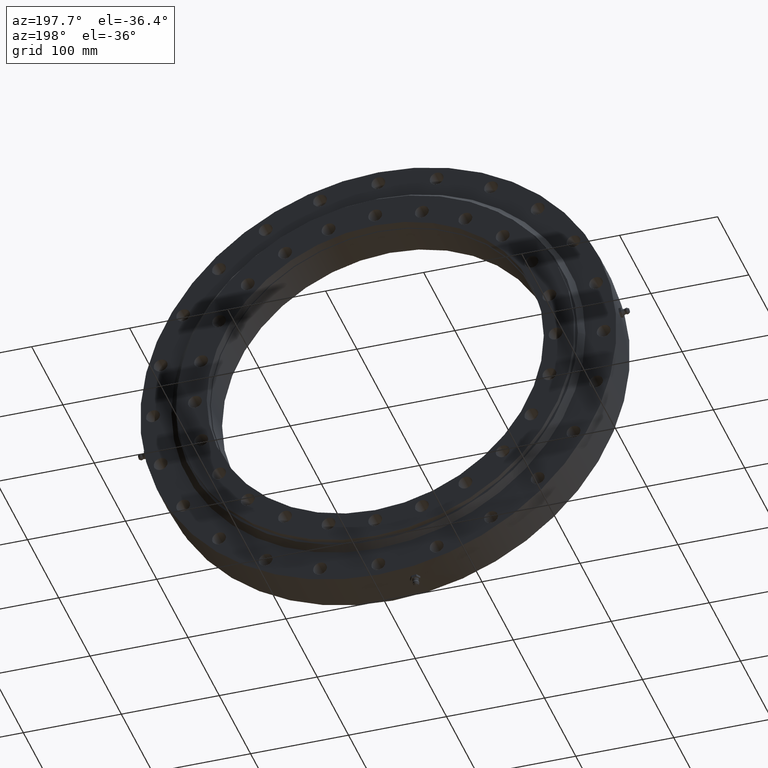
[diagram: clean part render]
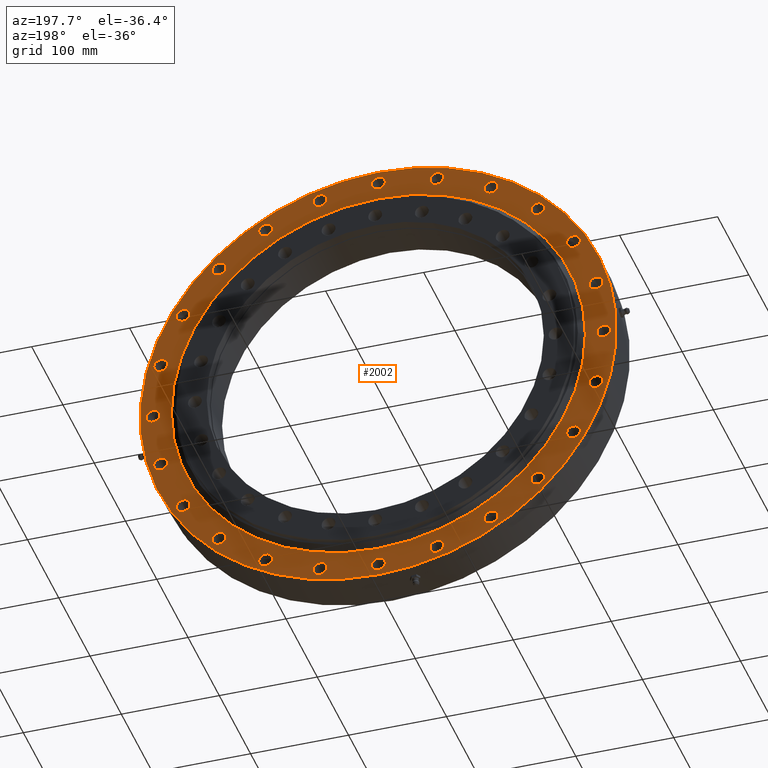
[diagram: same view with one face highlighted and labeled with its STEP entity id]
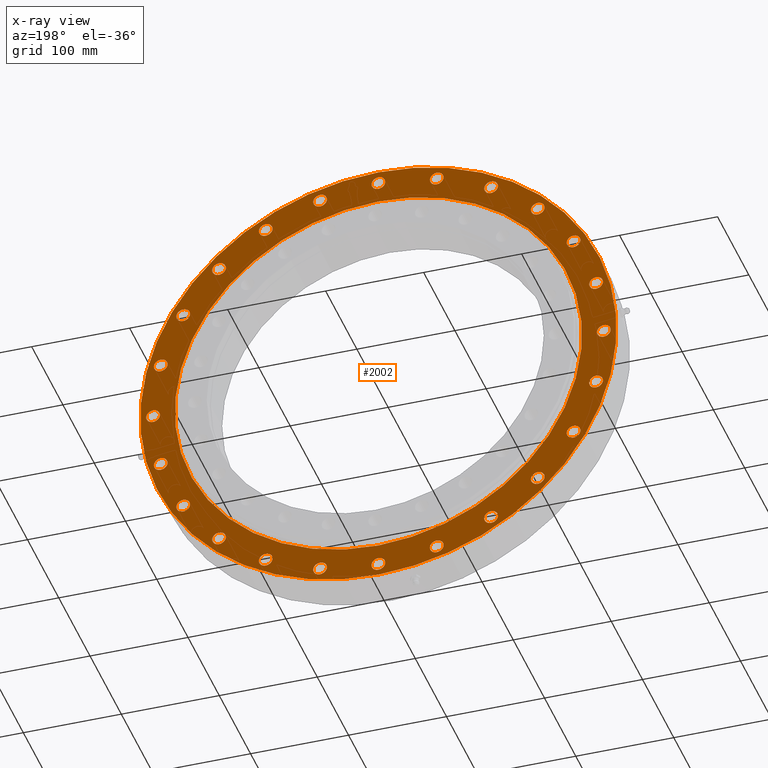
[diagram: x-ray of the same camera — body ghosted, the highlighted face saturated]
A machine part, auxiliary view. The second image highlights one B-rep face of the part: STEP entity #2002.
The next image is the same camera in x-ray: the body ghosted, the highlighted face saturated — about 0% of this face is hidden behind the body in this view.
In plain terms, the highlighted planar face has unit normal (0, -1, 0).
Its self-contained STEP definition (entity closure, byte-faithful):
#12 = CARTESIAN_POINT ( 'NONE',  ( 3.358424649491098500E-012, 17.99999999999999600, 230.0000000000000000 ) ) ;
#34 = AXIS2_PLACEMENT_3D ( 'NONE', #812, #7681, #7678 ) ;
#56 = EDGE_LOOP ( 'NONE', ( #7579, #6327 ) ) ;
#60 = DIRECTION ( 'NONE',  ( 6.982962677686261200E-015, 0.0000000000000000000, -1.000000000000000000 ) ) ;
#79 = ORIENTED_EDGE ( 'NONE', *, *, #7906, .F. ) ;
#105 = CARTESIAN_POINT ( 'NONE',  ( -222.1629400464850300, 17.99999999999999600, 59.52838037358238000 ) ) ;
#126 = CARTESIAN_POINT ( 'NONE',  ( -115.0000000000017500, 17.99999999999999600, -199.1858428704199200 ) ) ;
#152 = EDGE_CURVE ( 'NONE', #4807, #7496, #5101, .T. ) ;
#158 = CARTESIAN_POINT ( 'NONE',  ( 59.52838037357820900, 17.99999999999999600, -222.1629400464861100 ) ) ;
#180 = DIRECTION ( 'NONE',  ( 0.0000000000000000000, 1.000000000000000000, 0.0000000000000000000 ) ) ;
#194 = CARTESIAN_POINT ( 'NONE',  ( -199.1858428704194900, 17.99999999999999600, 122.0000000000024900 ) ) ;
#198 = FACE_BOUND ( 'NONE', #5571, .T. ) ;
#206 = CIRCLE ( 'NONE', #3798, 207.7500000000000000 ) ;
#212 = EDGE_CURVE ( 'NONE', #5508, #7221, #8297, .T. ) ;
#218 = DIRECTION ( 'NONE',  ( -0.9659258262890670900, 0.0000000000000000000, -0.2588190451025252400 ) ) ;
#226 = DIRECTION ( 'NONE',  ( 0.0000000000000000000, 1.000000000000000000, 0.0000000000000000000 ) ) ;
#278 = CARTESIAN_POINT ( 'NONE',  ( 230.0000000000000000, 17.99999999999999600, -9.493025256893363400E-013 ) ) ;
#294 = EDGE_LOOP ( 'NONE', ( #5988, #4813 ) ) ;
#302 = FACE_BOUND ( 'NONE', #8352, .T. ) ;
#309 = CIRCLE ( 'NONE', #2049, 7.000000000000008000 ) ;
#311 = DIRECTION ( 'NONE',  ( 0.0000000000000000000, 1.000000000000000000, 0.0000000000000000000 ) ) ;
#330 = EDGE_LOOP ( 'NONE', ( #4035, #7446 ) ) ;
#375 = VERTEX_POINT ( 'NONE', #5398 ) ;
#428 = AXIS2_PLACEMENT_3D ( 'NONE', #5316, #5695, #4287 ) ;
#433 = EDGE_LOOP ( 'NONE', ( #5042, #1531 ) ) ;
#481 = EDGE_LOOP ( 'NONE', ( #4454, #6932 ) ) ;
#494 = AXIS2_PLACEMENT_3D ( 'NONE', #5598, #2345, #2812 ) ;
#495 = FACE_BOUND ( 'NONE', #56, .T. ) ;
#505 = CIRCLE ( 'NONE', #1190, 7.000000000000013300 ) ;
#545 = EDGE_LOOP ( 'NONE', ( #2241, #6356 ) ) ;
#553 = EDGE_CURVE ( 'NONE', #375, #1250, #7198, .T. ) ;
#560 = VERTEX_POINT ( 'NONE', #4486 ) ;
#562 = AXIS2_PLACEMENT_3D ( 'NONE', #7717, #7292, #7293 ) ;
#572 = VERTEX_POINT ( 'NONE', #4662 ) ;
#576 = CIRCLE ( 'NONE', #6238, 7.000000000000009800 ) ;
#577 = EDGE_LOOP ( 'NONE', ( #4277, #5141 ) ) ;
#586 = DIRECTION ( 'NONE',  ( 0.8660254037844439300, 0.0000000000000000000, -0.4999999999999908400 ) ) ;
#605 = CIRCLE ( 'NONE', #2902, 7.000000000000009800 ) ;
#606 = CARTESIAN_POINT ( 'NONE',  ( -199.1858428704194900, 17.99999999999999600, 115.0000000000024600 ) ) ;
#620 = AXIS2_PLACEMENT_3D ( 'NONE', #4444, #4455, #4395 ) ;
#622 = VERTEX_POINT ( 'NONE', #4170 ) ;
#662 = CARTESIAN_POINT ( 'NONE',  ( 59.52838037357820900, 17.99999999999999600, -215.1629400464861100 ) ) ;
#695 = CARTESIAN_POINT ( 'NONE',  ( 2.975891721928068500E-014, 17.99999999999999600, -243.0000000000000000 ) ) ;
#710 = CARTESIAN_POINT ( 'NONE',  ( -1.752343233623257100E-012, 17.99999999999999600, -230.0000000000000000 ) ) ;
#726 = ORIENTED_EDGE ( 'NONE', *, *, #6213, .F. ) ;
#730 = VERTEX_POINT ( 'NONE', #5503 ) ;
#766 = CIRCLE ( 'NONE', #6563, 7.000000000000013300 ) ;
#801 = DIRECTION ( 'NONE',  ( 0.0000000000000000000, 1.000000000000000000, 0.0000000000000000000 ) ) ;
#812 = CARTESIAN_POINT ( 'NONE',  ( -59.52838037357666700, 17.99999999999999600, 222.1629400464865400 ) ) ;
#814 = ORIENTED_EDGE ( 'NONE', *, *, #3255, .F. ) ;
#844 = VERTEX_POINT ( 'NONE', #6255 ) ;
#845 = CARTESIAN_POINT ( 'NONE',  ( -222.1629400464863700, 17.99999999999999600, -59.52838037357744800 ) ) ;
#946 = VERTEX_POINT ( 'NONE', #6537 ) ;
#966 = VERTEX_POINT ( 'NONE', #6329 ) ;
#975 = VERTEX_POINT ( 'NONE', #6345 ) ;
#984 = CIRCLE ( 'NONE', #1748, 7.000000000000015100 ) ;
#992 = CIRCLE ( 'NONE', #5934, 7.000000000000013300 ) ;
#1008 = ORIENTED_EDGE ( 'NONE', *, *, #2587, .F. ) ;
#1050 = DIRECTION ( 'NONE',  ( 0.0000000000000000000, 1.000000000000000000, 0.0000000000000000000 ) ) ;
#1060 = CARTESIAN_POINT ( 'NONE',  ( 222.1629400464859400, 17.99999999999999600, 59.52838037357898300 ) ) ;
#1064 = CIRCLE ( 'NONE', #2153, 7.000000000000001800 ) ;
#1066 = EDGE_CURVE ( 'NONE', #5399, #4875, #5108, .T. ) ;
#1084 = FACE_BOUND ( 'NONE', #4563, .T. ) ;
#1085 = EDGE_CURVE ( 'NONE', #1838, #4535, #3424, .T. ) ;
#1103 = CARTESIAN_POINT ( 'NONE',  ( 162.6345596729063600, 17.99999999999999600, 169.6345596729055400 ) ) ;
#1137 = AXIS2_PLACEMENT_3D ( 'NONE', #7883, #7866, #7879 ) ;
#1143 = DIRECTION ( 'NONE',  ( 0.9659258262890653100, 0.0000000000000000000, 0.2588190451025316800 ) ) ;
#1146 = CIRCLE ( 'NONE', #1157, 7.000000000000008000 ) ;
#1157 = AXIS2_PLACEMENT_3D ( 'NONE', #158, #801, #2451 ) ;
#1190 = AXIS2_PLACEMENT_3D ( 'NONE', #8179, #311, #4578 ) ;
#1234 = EDGE_CURVE ( 'NONE', #7221, #5508, #3066, .T. ) ;
#1250 = VERTEX_POINT ( 'NONE', #1286 ) ;
#1252 = ORIENTED_EDGE ( 'NONE', *, *, #7527, .F. ) ;
#1262 = ORIENTED_EDGE ( 'NONE', *, *, #5309, .F. ) ;
#1264 = CARTESIAN_POINT ( 'NONE',  ( 0.0000000000000000000, 17.99999999999999600, 243.0000000000000000 ) ) ;
#1267 = VERTEX_POINT ( 'NONE', #1308 ) ;
#1271 = DIRECTION ( 'NONE',  ( -0.8660254037844368200, 0.0000000000000000000, -0.5000000000000032200 ) ) ;
#1274 = FACE_BOUND ( 'NONE', #4294, .T. ) ;
#1286 = CARTESIAN_POINT ( 'NONE',  ( 59.52838037358005600, 17.99999999999999600, 229.1629400464856600 ) ) ;
#1288 = AXIS2_PLACEMENT_3D ( 'NONE', #6175, #6147, #6138 ) ;
#1307 = ORIENTED_EDGE ( 'NONE', *, *, #5243, .F. ) ;
#1308 = CARTESIAN_POINT ( 'NONE',  ( 222.1629400464859400, 17.99999999999999600, 66.52838037357899700 ) ) ;
#1316 = CARTESIAN_POINT ( 'NONE',  ( -222.1629400464850300, 17.99999999999999600, 59.52838037358238000 ) ) ;
#1333 = VERTEX_POINT ( 'NONE', #8318 ) ;
#1352 = EDGE_LOOP ( 'NONE', ( #3452, #814 ) ) ;
#1373 = CARTESIAN_POINT ( 'NONE',  ( -1.752343233623257100E-012, 17.99999999999999600, -223.0000000000000000 ) ) ;
#1376 = CARTESIAN_POINT ( 'NONE',  ( 59.52838037357820900, 17.99999999999999600, -229.1629400464861400 ) ) ;
#1385 = DIRECTION ( 'NONE',  ( -0.7071067811865475700, 0.0000000000000000000, 0.7071067811865475700 ) ) ;
#1414 = DIRECTION ( 'NONE',  ( -0.7071067811865435800, 0.0000000000000000000, -0.7071067811865515700 ) ) ;
#1471 = DIRECTION ( 'NONE',  ( -1.000000000000000000, 0.0000000000000000000, -3.491481338843116800E-015 ) ) ;
#1479 = FACE_BOUND ( 'NONE', #481, .T. ) ;
#1500 = CARTESIAN_POINT ( 'NONE',  ( 3.359281902250501700E-012, 17.99999999999999600, 223.0000000000000000 ) ) ;
#1531 = ORIENTED_EDGE ( 'NONE', *, *, #2012, .F. ) ;
#1545 = CARTESIAN_POINT ( 'NONE',  ( -230.0000000000000000, 17.99999999999999600, 2.555383941557177700E-012 ) ) ;
#1552 = VERTEX_POINT ( 'NONE', #1103 ) ;
#1600 = DIRECTION ( 'NONE',  ( 0.0000000000000000000, 1.000000000000000000, 0.0000000000000000000 ) ) ;
#1661 = ORIENTED_EDGE ( 'NONE', *, *, #6516, .F. ) ;
#1680 = AXIS2_PLACEMENT_3D ( 'NONE', #2182, #2750, #2206 ) ;
#1725 = CIRCLE ( 'NONE', #2940, 7.000000000000016900 ) ;
#1748 = AXIS2_PLACEMENT_3D ( 'NONE', #6203, #1832, #2989 ) ;
#1765 = CIRCLE ( 'NONE', #3156, 7.000000000000014200 ) ;
#1832 = DIRECTION ( 'NONE',  ( 0.0000000000000000000, 1.000000000000000000, 0.0000000000000000000 ) ) ;
#1838 = VERTEX_POINT ( 'NONE', #695 ) ;
#1841 = DIRECTION ( 'NONE',  ( -0.2588190451025214600, 0.0000000000000000000, 0.9659258262890680900 ) ) ;
#1896 = AXIS2_PLACEMENT_3D ( 'NONE', #2335, #2165, #6310 ) ;
#1908 = AXIS2_PLACEMENT_3D ( 'NONE', #5736, #2933, #6742 ) ;
#1928 = EDGE_CURVE ( 'NONE', #8257, #5756, #3658, .T. ) ;
#1929 = CIRCLE ( 'NONE', #2438, 7.000000000000006200 ) ;
#1952 = DIRECTION ( 'NONE',  ( 1.000000000000000000, 0.0000000000000000000, 1.047444401652940600E-014 ) ) ;
#1958 = DIRECTION ( 'NONE',  ( 0.4999999999999894000, 0.0000000000000000000, 0.8660254037844448100 ) ) ;
#1973 = FACE_BOUND ( 'NONE', #577, .T. ) ;
#2002 = ADVANCED_FACE ( 'NONE', ( #6489, #3111, #198, #8351, #4952, #4752, #8137, #1479, #4550, #6279, #1274, #2923, #6083, #7909, #2732, #4341, #1084, #5888, #302, #1973, #3571, #5270, #7026, #495, #2163, #3744 ), #2595, .F. ) ;
#2012 = EDGE_CURVE ( 'NONE', #2340, #6907, #5481, .T. ) ;
#2049 = AXIS2_PLACEMENT_3D ( 'NONE', #7353, #4811, #6269 ) ;
#2097 = EDGE_CURVE ( 'NONE', #5003, #1267, #3376, .T. ) ;
#2153 = AXIS2_PLACEMENT_3D ( 'NONE', #845, #4540, #218 ) ;
#2154 = CIRCLE ( 'NONE', #4588, 7.000000000000013300 ) ;
#2163 = FACE_BOUND ( 'NONE', #6481, .T. ) ;
#2165 = DIRECTION ( 'NONE',  ( 0.0000000000000000000, 1.000000000000000000, 0.0000000000000000000 ) ) ;
#2170 = EDGE_LOOP ( 'NONE', ( #5928, #5240 ) ) ;
#2182 = CARTESIAN_POINT ( 'NONE',  ( -59.52838037358160500, 17.99999999999999600, -222.1629400464852300 ) ) ;
#2201 = CARTESIAN_POINT ( 'NONE',  ( -222.1629400464863700, 17.99999999999999600, -52.52838037357743400 ) ) ;
#2203 = DIRECTION ( 'NONE',  ( 0.0000000000000000000, 1.000000000000000000, 0.0000000000000000000 ) ) ;
#2206 = DIRECTION ( 'NONE',  ( -0.2588190451025149700, 0.0000000000000000000, -0.9659258262890697600 ) ) ;
#2241 = ORIENTED_EDGE ( 'NONE', *, *, #5790, .F. ) ;
#2252 = ORIENTED_EDGE ( 'NONE', *, *, #3851, .F. ) ;
#2269 = EDGE_CURVE ( 'NONE', #3082, #730, #2638, .T. ) ;
#2283 = DIRECTION ( 'NONE',  ( 0.0000000000000000000, 1.000000000000000000, 0.0000000000000000000 ) ) ;
#2310 = VERTEX_POINT ( 'NONE', #2747 ) ;
#2335 = CARTESIAN_POINT ( 'NONE',  ( 114.9999999999987400, 17.99999999999999600, -199.1858428704216500 ) ) ;
#2340 = VERTEX_POINT ( 'NONE', #4794 ) ;
#2345 = DIRECTION ( 'NONE',  ( 0.0000000000000000000, 1.000000000000000000, 0.0000000000000000000 ) ) ;
#2354 = CIRCLE ( 'NONE', #4426, 7.000000000000006200 ) ;
#2392 = VERTEX_POINT ( 'NONE', #4715 ) ;
#2411 = ORIENTED_EDGE ( 'NONE', *, *, #3627, .F. ) ;
#2438 = AXIS2_PLACEMENT_3D ( 'NONE', #278, #226, #1952 ) ;
#2441 = VERTEX_POINT ( 'NONE', #3011 ) ;
#2451 = DIRECTION ( 'NONE',  ( 0.2588190451025280100, 0.0000000000000000000, -0.9659258262890663100 ) ) ;
#2463 = CARTESIAN_POINT ( 'NONE',  ( -59.52838037357666700, 17.99999999999999600, 222.1629400464865400 ) ) ;
#2513 = CIRCLE ( 'NONE', #5333, 7.000000000000014200 ) ;
#2516 = AXIS2_PLACEMENT_3D ( 'NONE', #2463, #6210, #1841 ) ;
#2531 = DIRECTION ( 'NONE',  ( 0.0000000000000000000, -1.000000000000000000, 0.0000000000000000000 ) ) ;
#2543 = EDGE_CURVE ( 'NONE', #5129, #975, #2354, .T. ) ;
#2570 = CIRCLE ( 'NONE', #562, 7.000000000000014200 ) ;
#2585 = CARTESIAN_POINT ( 'NONE',  ( 162.6345596729063600, 17.99999999999999600, 162.6345596729055100 ) ) ;
#2587 = EDGE_CURVE ( 'NONE', #8201, #7786, #2154, .T. ) ;
#2595 = PLANE ( 'NONE',  #8089 ) ;
#2596 = ORIENTED_EDGE ( 'NONE', *, *, #4750, .F. ) ;
#2613 = DIRECTION ( 'NONE',  ( 0.4999999999999894000, 0.0000000000000000000, 0.8660254037844448100 ) ) ;
#2638 = CIRCLE ( 'NONE', #1680, 7.000000000000011500 ) ;
#2644 = DIRECTION ( 'NONE',  ( 0.0000000000000000000, 1.000000000000000000, 0.0000000000000000000 ) ) ;
#2694 = DIRECTION ( 'NONE',  ( -0.2588190451025149700, 0.0000000000000000000, -0.9659258262890697600 ) ) ;
#2699 = DIRECTION ( 'NONE',  ( 0.0000000000000000000, 1.000000000000000000, 0.0000000000000000000 ) ) ;
#2732 = FACE_BOUND ( 'NONE', #433, .T. ) ;
#2737 = DIRECTION ( 'NONE',  ( 0.0000000000000000000, 1.000000000000000000, 0.0000000000000000000 ) ) ;
#2740 = DIRECTION ( 'NONE',  ( 0.0000000000000000000, 1.000000000000000000, 0.0000000000000000000 ) ) ;
#2744 = EDGE_LOOP ( 'NONE', ( #2800, #4523 ) ) ;
#2747 = CARTESIAN_POINT ( 'NONE',  ( -114.9999999999973300, 17.99999999999999600, 206.1858428704224800 ) ) ;
#2750 = DIRECTION ( 'NONE',  ( 0.0000000000000000000, 1.000000000000000000, 0.0000000000000000000 ) ) ;
#2754 = AXIS2_PLACEMENT_3D ( 'NONE', #6441, #3466, #3277 ) ;
#2800 = ORIENTED_EDGE ( 'NONE', *, *, #3046, .F. ) ;
#2806 = CIRCLE ( 'NONE', #5162, 207.7500000000000000 ) ;
#2812 = DIRECTION ( 'NONE',  ( 0.7071067811865554600, 0.0000000000000000000, -0.7071067811865395800 ) ) ;
#2831 = DIRECTION ( 'NONE',  ( 0.0000000000000000000, 0.0000000000000000000, 1.000000000000000000 ) ) ;
#2832 = AXIS2_PLACEMENT_3D ( 'NONE', #606, #2914, #2920 ) ;
#2835 = CARTESIAN_POINT ( 'NONE',  ( -222.1629400464850300, 17.99999999999999600, 52.52838037358236500 ) ) ;
#2839 = EDGE_LOOP ( 'NONE', ( #1252, #5818 ) ) ;
#2858 = CARTESIAN_POINT ( 'NONE',  ( 199.1858428704202900, 17.99999999999999600, -115.0000000000010800 ) ) ;
#2866 = DIRECTION ( 'NONE',  ( 0.7071067811865395800, 0.0000000000000000000, 0.7071067811865554600 ) ) ;
#2881 = EDGE_LOOP ( 'NONE', ( #2411, #5120 ) ) ;
#2896 = DIRECTION ( 'NONE',  ( -0.0000000000000000000, 1.000000000000000000, -0.0000000000000000000 ) ) ;
#2902 = AXIS2_PLACEMENT_3D ( 'NONE', #5246, #2699, #3276 ) ;
#2914 = DIRECTION ( 'NONE',  ( 0.0000000000000000000, 1.000000000000000000, 0.0000000000000000000 ) ) ;
#2918 = CIRCLE ( 'NONE', #8076, 7.000000000000016900 ) ;
#2920 = DIRECTION ( 'NONE',  ( -0.8660254037844402600, 0.0000000000000000000, 0.4999999999999970000 ) ) ;
#2923 = FACE_BOUND ( 'NONE', #545, .T. ) ;
#2933 = DIRECTION ( 'NONE',  ( 0.0000000000000000000, 1.000000000000000000, 0.0000000000000000000 ) ) ;
#2940 = AXIS2_PLACEMENT_3D ( 'NONE', #5942, #2203, #6599 ) ;
#2946 = CARTESIAN_POINT ( 'NONE',  ( 0.0000000000000000000, 18.00000000000000000, 0.0000000000000000000 ) ) ;
#2964 = DIRECTION ( 'NONE',  ( 0.0000000000000000000, 1.000000000000000000, 0.0000000000000000000 ) ) ;
#2966 = VERTEX_POINT ( 'NONE', #7778 ) ;
#2982 = VERTEX_POINT ( 'NONE', #7940 ) ;
#2989 = DIRECTION ( 'NONE',  ( 0.9659258262890653100, 0.0000000000000000000, 0.2588190451025316800 ) ) ;
#2997 = AXIS2_PLACEMENT_3D ( 'NONE', #4998, #3885, #2613 ) ;
#2998 = CIRCLE ( 'NONE', #2997, 7.000000000000016000 ) ;
#3011 = CARTESIAN_POINT ( 'NONE',  ( -199.1858428704221100, 17.99999999999999600, -107.9999999999980100 ) ) ;
#3013 = AXIS2_PLACEMENT_3D ( 'NONE', #7101, #7076, #7048 ) ;
#3046 = EDGE_CURVE ( 'NONE', #2310, #4183, #576, .T. ) ;
#3061 = CARTESIAN_POINT ( 'NONE',  ( -222.1629400464863700, 17.99999999999999600, -66.52838037357746300 ) ) ;
#3065 = CIRCLE ( 'NONE', #7977, 7.000000000000013300 ) ;
#3066 = CIRCLE ( 'NONE', #7908, 7.000000000000006200 ) ;
#3082 = VERTEX_POINT ( 'NONE', #5616 ) ;
#3110 = CARTESIAN_POINT ( 'NONE',  ( 115.0000000000003700, 17.99999999999999600, 192.1858428704207100 ) ) ;
#3111 = FACE_BOUND ( 'NONE', #7321, .T. ) ;
#3116 = AXIS2_PLACEMENT_3D ( 'NONE', #6744, #2964, #1958 ) ;
#3153 = EDGE_CURVE ( 'NONE', #6907, #2340, #2570, .T. ) ;
#3155 = CARTESIAN_POINT ( 'NONE',  ( 162.6345596729063600, 17.99999999999999600, 162.6345596729055100 ) ) ;
#3156 = AXIS2_PLACEMENT_3D ( 'NONE', #2585, #2737, #2866 ) ;
#3178 = VERTEX_POINT ( 'NONE', #6827 ) ;
#3194 = EDGE_LOOP ( 'NONE', ( #5773, #7368 ) ) ;
#3255 = EDGE_CURVE ( 'NONE', #2392, #3178, #7502, .T. ) ;
#3276 = DIRECTION ( 'NONE',  ( -0.5000000000000016700, 0.0000000000000000000, 0.8660254037844377100 ) ) ;
#3277 = DIRECTION ( 'NONE',  ( 0.9659258262890708700, 0.0000000000000000000, -0.2588190451025113000 ) ) ;
#3291 = CARTESIAN_POINT ( 'NONE',  ( -59.52838037358160500, 17.99999999999999600, -222.1629400464852300 ) ) ;
#3312 = CIRCLE ( 'NONE', #3763, 7.000000000000011500 ) ;
#3318 = VERTEX_POINT ( 'NONE', #5063 ) ;
#3343 = CARTESIAN_POINT ( 'NONE',  ( 199.1858428704212500, 17.99999999999999600, 107.9999999999993900 ) ) ;
#3347 = EDGE_CURVE ( 'NONE', #4183, #2310, #605, .T. ) ;
#3355 = ORIENTED_EDGE ( 'NONE', *, *, #3589, .F. ) ;
#3376 = CIRCLE ( 'NONE', #7630, 7.000000000000015100 ) ;
#3416 = CARTESIAN_POINT ( 'NONE',  ( -115.0000000000017500, 17.99999999999999600, -206.1858428704199200 ) ) ;
#3424 = CIRCLE ( 'NONE', #8266, 243.0000000000000000 ) ;
#3426 = ORIENTED_EDGE ( 'NONE', *, *, #4059, .F. ) ;
#3430 = CARTESIAN_POINT ( 'NONE',  ( -230.0000000000000000, 17.99999999999999600, 7.000000000002569500 ) ) ;
#3435 = VERTEX_POINT ( 'NONE', #3110 ) ;
#3452 = ORIENTED_EDGE ( 'NONE', *, *, #5082, .F. ) ;
#3466 = DIRECTION ( 'NONE',  ( 0.0000000000000000000, 1.000000000000000000, 0.0000000000000000000 ) ) ;
#3468 = VERTEX_POINT ( 'NONE', #3543 ) ;
#3479 = CIRCLE ( 'NONE', #7428, 7.000000000000006200 ) ;
#3499 = DIRECTION ( 'NONE',  ( 0.9659258262890708700, 0.0000000000000000000, -0.2588190451025113000 ) ) ;
#3505 = AXIS2_PLACEMENT_3D ( 'NONE', #5177, #5305, #5159 ) ;
#3540 = EDGE_CURVE ( 'NONE', #6364, #5303, #309, .T. ) ;
#3543 = CARTESIAN_POINT ( 'NONE',  ( 162.6345596729049700, 17.99999999999999600, -169.6345596729069000 ) ) ;
#3571 = FACE_BOUND ( 'NONE', #4559, .T. ) ;
#3576 = CARTESIAN_POINT ( 'NONE',  ( -162.6345596729038600, 17.99999999999999600, 162.6345596729080400 ) ) ;
#3583 = DIRECTION ( 'NONE',  ( 0.0000000000000000000, -0.0000000000000000000, -1.000000000000000000 ) ) ;
#3585 = CARTESIAN_POINT ( 'NONE',  ( 0.0000000000000000000, 18.00000000000000000, 207.7500000000000000 ) ) ;
#3589 = EDGE_CURVE ( 'NONE', #6494, #572, #505, .T. ) ;
#3622 = DIRECTION ( 'NONE',  ( 0.7071067811865395800, 0.0000000000000000000, 0.7071067811865554600 ) ) ;
#3627 = EDGE_CURVE ( 'NONE', #622, #6079, #766, .T. ) ;
#3653 = EDGE_LOOP ( 'NONE', ( #1307, #3355 ) ) ;
#3658 = CIRCLE ( 'NONE', #8330, 7.000000000000016000 ) ;
#3671 = DIRECTION ( 'NONE',  ( -0.9659258262890690900, 0.0000000000000000000, 0.2588190451025177400 ) ) ;
#3674 = EDGE_CURVE ( 'NONE', #1552, #560, #1765, .T. ) ;
#3679 = DIRECTION ( 'NONE',  ( 0.0000000000000000000, 1.000000000000000000, 0.0000000000000000000 ) ) ;
#3727 = DIRECTION ( 'NONE',  ( 0.0000000000000000000, 1.000000000000000000, 0.0000000000000000000 ) ) ;
#3729 = CIRCLE ( 'NONE', #4995, 7.000000000000006200 ) ;
#3735 = DIRECTION ( 'NONE',  ( 0.0000000000000000000, 1.000000000000000000, 0.0000000000000000000 ) ) ;
#3744 = FACE_OUTER_BOUND ( 'NONE', #330, .T. ) ;
#3745 = EDGE_LOOP ( 'NONE', ( #7392, #4798 ) ) ;
#3752 = CIRCLE ( 'NONE', #5062, 7.000000000000016000 ) ;
#3755 = CARTESIAN_POINT ( 'NONE',  ( 230.0000000000000000, 17.99999999999999600, -9.493025256893363400E-013 ) ) ;
#3758 = DIRECTION ( 'NONE',  ( 0.0000000000000000000, 0.0000000000000000000, 1.000000000000000000 ) ) ;
#3763 = AXIS2_PLACEMENT_3D ( 'NONE', #3291, #7186, #2694 ) ;
#3798 = AXIS2_PLACEMENT_3D ( 'NONE', #2946, #2896, #2831 ) ;
#3804 = DIRECTION ( 'NONE',  ( 0.0000000000000000000, 0.0000000000000000000, 1.000000000000000000 ) ) ;
#3819 = EDGE_CURVE ( 'NONE', #7160, #6303, #6456, .T. ) ;
#3841 = EDGE_CURVE ( 'NONE', #3468, #2966, #6569, .T. ) ;
#3851 = EDGE_CURVE ( 'NONE', #1250, #375, #5136, .T. ) ;
#3875 = CARTESIAN_POINT ( 'NONE',  ( -1.751485980863853800E-012, 17.99999999999999600, -237.0000000000000300 ) ) ;
#3880 = ORIENTED_EDGE ( 'NONE', *, *, #1066, .F. ) ;
#3885 = DIRECTION ( 'NONE',  ( 0.0000000000000000000, 1.000000000000000000, 0.0000000000000000000 ) ) ;
#3888 = DIRECTION ( 'NONE',  ( 0.0000000000000000000, 1.000000000000000000, 0.0000000000000000000 ) ) ;
#3889 = DIRECTION ( 'NONE',  ( 1.000000000000000000, 0.0000000000000000000, 1.047444401652940600E-014 ) ) ;
#3913 = CARTESIAN_POINT ( 'NONE',  ( 0.0000000000000000000, 18.00000000000000000, 0.0000000000000000000 ) ) ;
#3933 = DIRECTION ( 'NONE',  ( 0.0000000000000000000, 1.000000000000000000, 0.0000000000000000000 ) ) ;
#3964 = CARTESIAN_POINT ( 'NONE',  ( 230.0000000000000000, 17.99999999999999600, 6.999999999999064700 ) ) ;
#3974 = EDGE_CURVE ( 'NONE', #5303, #6364, #1146, .T. ) ;
#3997 = CIRCLE ( 'NONE', #5940, 7.000000000000023100 ) ;
#4031 = VERTEX_POINT ( 'NONE', #194 ) ;
#4035 = ORIENTED_EDGE ( 'NONE', *, *, #4724, .T. ) ;
#4059 = EDGE_CURVE ( 'NONE', #2982, #7674, #206, .T. ) ;
#4170 = CARTESIAN_POINT ( 'NONE',  ( -115.0000000000017500, 17.99999999999999600, -192.1858428704198900 ) ) ;
#4183 = VERTEX_POINT ( 'NONE', #6939 ) ;
#4210 = CIRCLE ( 'NONE', #2832, 7.000000000000020400 ) ;
#4216 = DIRECTION ( 'NONE',  ( -0.7071067811865475700, 0.0000000000000000000, 0.7071067811865475700 ) ) ;
#4277 = ORIENTED_EDGE ( 'NONE', *, *, #6614, .F. ) ;
#4287 = DIRECTION ( 'NONE',  ( 0.0000000000000000000, 0.0000000000000000000, 1.000000000000000000 ) ) ;
#4294 = EDGE_LOOP ( 'NONE', ( #7974, #5007 ) ) ;
#4324 = VERTEX_POINT ( 'NONE', #1500 ) ;
#4341 = FACE_BOUND ( 'NONE', #294, .T. ) ;
#4357 = EDGE_CURVE ( 'NONE', #844, #7403, #7370, .T. ) ;
#4377 = DIRECTION ( 'NONE',  ( 0.0000000000000000000, 1.000000000000000000, 0.0000000000000000000 ) ) ;
#4394 = DIRECTION ( 'NONE',  ( 0.0000000000000000000, 1.000000000000000000, 0.0000000000000000000 ) ) ;
#4395 = DIRECTION ( 'NONE',  ( 0.2588190451025075300, 0.0000000000000000000, 0.9659258262890718600 ) ) ;
#4397 = EDGE_CURVE ( 'NONE', #5756, #8257, #3752, .T. ) ;
#4426 = AXIS2_PLACEMENT_3D ( 'NONE', #3755, #3888, #3889 ) ;
#4432 = DIRECTION ( 'NONE',  ( 0.0000000000000000000, 1.000000000000000000, 0.0000000000000000000 ) ) ;
#4434 = ORIENTED_EDGE ( 'NONE', *, *, #1928, .F. ) ;
#4444 = CARTESIAN_POINT ( 'NONE',  ( 59.52838037358005600, 17.99999999999999600, 222.1629400464856600 ) ) ;
#4445 = DIRECTION ( 'NONE',  ( 0.0000000000000000000, 1.000000000000000000, 0.0000000000000000000 ) ) ;
#4447 = ORIENTED_EDGE ( 'NONE', *, *, #5078, .F. ) ;
#4452 = DIRECTION ( 'NONE',  ( 0.2588190451025075300, 0.0000000000000000000, 0.9659258262890718600 ) ) ;
#4454 = ORIENTED_EDGE ( 'NONE', *, *, #5671, .F. ) ;
#4455 = DIRECTION ( 'NONE',  ( 0.0000000000000000000, 1.000000000000000000, 0.0000000000000000000 ) ) ;
#4486 = CARTESIAN_POINT ( 'NONE',  ( 162.6345596729063600, 17.99999999999999600, 155.6345596729055100 ) ) ;
#4523 = ORIENTED_EDGE ( 'NONE', *, *, #3347, .F. ) ;
#4524 = CARTESIAN_POINT ( 'NONE',  ( 115.0000000000003700, 17.99999999999999600, 206.1858428704207100 ) ) ;
#4532 = CARTESIAN_POINT ( 'NONE',  ( 114.9999999999987400, 17.99999999999999600, -206.1858428704216500 ) ) ;
#4535 = VERTEX_POINT ( 'NONE', #1264 ) ;
#4540 = DIRECTION ( 'NONE',  ( 0.0000000000000000000, 1.000000000000000000, 0.0000000000000000000 ) ) ;
#4550 = FACE_BOUND ( 'NONE', #5852, .T. ) ;
#4557 = CARTESIAN_POINT ( 'NONE',  ( 3.358424649491098500E-012, 17.99999999999999600, 230.0000000000000000 ) ) ;
#4559 = EDGE_LOOP ( 'NONE', ( #6778, #1008 ) ) ;
#4563 = EDGE_LOOP ( 'NONE', ( #3880, #1661 ) ) ;
#4578 = DIRECTION ( 'NONE',  ( 0.8660254037844332700, 0.0000000000000000000, 0.5000000000000094400 ) ) ;
#4588 = AXIS2_PLACEMENT_3D ( 'NONE', #3576, #3735, #4216 ) ;
#4631 = EDGE_CURVE ( 'NONE', #2966, #3468, #5286, .T. ) ;
#4662 = CARTESIAN_POINT ( 'NONE',  ( 199.1858428704212500, 17.99999999999999600, 121.9999999999994300 ) ) ;
#4682 = CIRCLE ( 'NONE', #8375, 7.000000000000003600 ) ;
#4685 = DIRECTION ( 'NONE',  ( -0.0000000000000000000, 1.000000000000000000, -0.0000000000000000000 ) ) ;
#4695 = DIRECTION ( 'NONE',  ( -0.4999999999999955000, 0.0000000000000000000, -0.8660254037844411500 ) ) ;
#4715 = CARTESIAN_POINT ( 'NONE',  ( 222.1629400464854600, 17.99999999999999600, -66.52838037358084500 ) ) ;
#4724 = EDGE_CURVE ( 'NONE', #4535, #1838, #7999, .T. ) ;
#4746 = EDGE_CURVE ( 'NONE', #1333, #4031, #4210, .T. ) ;
#4750 = EDGE_CURVE ( 'NONE', #6158, #3435, #2998, .T. ) ;
#4752 = FACE_BOUND ( 'NONE', #8012, .T. ) ;
#4790 = CIRCLE ( 'NONE', #3116, 7.000000000000016000 ) ;
#4794 = CARTESIAN_POINT ( 'NONE',  ( -162.6345596729074700, 17.99999999999999600, -169.6345596729044300 ) ) ;
#4798 = ORIENTED_EDGE ( 'NONE', *, *, #212, .F. ) ;
#4807 = VERTEX_POINT ( 'NONE', #3875 ) ;
#4811 = DIRECTION ( 'NONE',  ( 0.0000000000000000000, 1.000000000000000000, 0.0000000000000000000 ) ) ;
#4813 = ORIENTED_EDGE ( 'NONE', *, *, #7969, .F. ) ;
#4875 = VERTEX_POINT ( 'NONE', #3061 ) ;
#4881 = EDGE_CURVE ( 'NONE', #6079, #622, #5631, .T. ) ;
#4896 = CARTESIAN_POINT ( 'NONE',  ( 59.52838037358005600, 17.99999999999999600, 222.1629400464856600 ) ) ;
#4941 = ORIENTED_EDGE ( 'NONE', *, *, #4397, .F. ) ;
#4942 = ORIENTED_EDGE ( 'NONE', *, *, #2543, .F. ) ;
#4952 = FACE_BOUND ( 'NONE', #2839, .T. ) ;
#4973 = CARTESIAN_POINT ( 'NONE',  ( 199.1858428704202900, 17.99999999999999600, -122.0000000000010900 ) ) ;
#4995 = AXIS2_PLACEMENT_3D ( 'NONE', #710, #4394, #60 ) ;
#4998 = CARTESIAN_POINT ( 'NONE',  ( 115.0000000000003700, 17.99999999999999600, 199.1858428704207100 ) ) ;
#4999 = CARTESIAN_POINT ( 'NONE',  ( -59.52838037357666700, 17.99999999999999600, 215.1629400464865400 ) ) ;
#5003 = VERTEX_POINT ( 'NONE', #5844 ) ;
#5007 = ORIENTED_EDGE ( 'NONE', *, *, #3540, .F. ) ;
#5042 = ORIENTED_EDGE ( 'NONE', *, *, #3153, .F. ) ;
#5062 = AXIS2_PLACEMENT_3D ( 'NONE', #1316, #6344, #6333 ) ;
#5063 = CARTESIAN_POINT ( 'NONE',  ( -199.1858428704221100, 17.99999999999999600, -121.9999999999980500 ) ) ;
#5065 = CIRCLE ( 'NONE', #2516, 7.000000000000023100 ) ;
#5078 = EDGE_CURVE ( 'NONE', #560, #1552, #2513, .T. ) ;
#5081 = ORIENTED_EDGE ( 'NONE', *, *, #4631, .F. ) ;
#5082 = EDGE_CURVE ( 'NONE', #3178, #2392, #4682, .T. ) ;
#5086 = DIRECTION ( 'NONE',  ( 0.8660254037844439300, 0.0000000000000000000, -0.4999999999999908400 ) ) ;
#5095 = ORIENTED_EDGE ( 'NONE', *, *, #3841, .F. ) ;
#5101 = CIRCLE ( 'NONE', #1137, 7.000000000000006200 ) ;
#5108 = CIRCLE ( 'NONE', #5674, 7.000000000000001800 ) ;
#5120 = ORIENTED_EDGE ( 'NONE', *, *, #4881, .F. ) ;
#5129 = VERTEX_POINT ( 'NONE', #3964 ) ;
#5136 = CIRCLE ( 'NONE', #7319, 7.000000000000024900 ) ;
#5141 = ORIENTED_EDGE ( 'NONE', *, *, #4746, .F. ) ;
#5143 = CIRCLE ( 'NONE', #1896, 7.000000000000007100 ) ;
#5159 = DIRECTION ( 'NONE',  ( 0.7071067811865554600, 0.0000000000000000000, -0.7071067811865395800 ) ) ;
#5162 = AXIS2_PLACEMENT_3D ( 'NONE', #3913, #4685, #3758 ) ;
#5177 = CARTESIAN_POINT ( 'NONE',  ( 162.6345596729049700, 17.99999999999999600, -162.6345596729069000 ) ) ;
#5240 = ORIENTED_EDGE ( 'NONE', *, *, #6779, .F. ) ;
#5243 = EDGE_CURVE ( 'NONE', #572, #6494, #3065, .T. ) ;
#5246 = CARTESIAN_POINT ( 'NONE',  ( -114.9999999999973300, 17.99999999999999600, 199.1858428704224500 ) ) ;
#5270 = FACE_BOUND ( 'NONE', #2744, .T. ) ;
#5286 = CIRCLE ( 'NONE', #494, 7.000000000000014200 ) ;
#5303 = VERTEX_POINT ( 'NONE', #662 ) ;
#5305 = DIRECTION ( 'NONE',  ( 0.0000000000000000000, 1.000000000000000000, 0.0000000000000000000 ) ) ;
#5309 = EDGE_CURVE ( 'NONE', #975, #5129, #1929, .T. ) ;
#5316 = CARTESIAN_POINT ( 'NONE',  ( 0.0000000000000000000, 17.99999999999999600, 0.0000000000000000000 ) ) ;
#5333 = AXIS2_PLACEMENT_3D ( 'NONE', #3155, #4377, #3622 ) ;
#5398 = CARTESIAN_POINT ( 'NONE',  ( 59.52838037358005600, 17.99999999999999600, 215.1629400464856600 ) ) ;
#5399 = VERTEX_POINT ( 'NONE', #2201 ) ;
#5457 = EDGE_CURVE ( 'NONE', #7429, #946, #3997, .T. ) ;
#5481 = CIRCLE ( 'NONE', #8149, 7.000000000000014200 ) ;
#5503 = CARTESIAN_POINT ( 'NONE',  ( -59.52838037358160500, 17.99999999999999600, -215.1629400464852300 ) ) ;
#5508 = VERTEX_POINT ( 'NONE', #8066 ) ;
#5571 = EDGE_LOOP ( 'NONE', ( #8070, #4447 ) ) ;
#5598 = CARTESIAN_POINT ( 'NONE',  ( 162.6345596729049700, 17.99999999999999600, -162.6345596729069000 ) ) ;
#5616 = CARTESIAN_POINT ( 'NONE',  ( -59.52838037358160500, 17.99999999999999600, -229.1629400464852300 ) ) ;
#5631 = CIRCLE ( 'NONE', #7180, 7.000000000000013300 ) ;
#5671 = EDGE_CURVE ( 'NONE', #946, #7429, #6302, .T. ) ;
#5674 = AXIS2_PLACEMENT_3D ( 'NONE', #7597, #7608, #7593 ) ;
#5684 = EDGE_CURVE ( 'NONE', #2441, #3318, #1725, .T. ) ;
#5695 = DIRECTION ( 'NONE',  ( -0.0000000000000000000, 1.000000000000000000, -0.0000000000000000000 ) ) ;
#5736 = CARTESIAN_POINT ( 'NONE',  ( -199.1858428704194900, 17.99999999999999600, 115.0000000000024600 ) ) ;
#5756 = VERTEX_POINT ( 'NONE', #2835 ) ;
#5773 = ORIENTED_EDGE ( 'NONE', *, *, #6543, .F. ) ;
#5790 = EDGE_CURVE ( 'NONE', #7496, #4807, #3729, .T. ) ;
#5818 = ORIENTED_EDGE ( 'NONE', *, *, #2097, .F. ) ;
#5819 = AXIS2_PLACEMENT_3D ( 'NONE', #2858, #2283, #586 ) ;
#5844 = CARTESIAN_POINT ( 'NONE',  ( 222.1629400464859400, 17.99999999999999600, 52.52838037357897600 ) ) ;
#5852 = EDGE_LOOP ( 'NONE', ( #5081, #5095 ) ) ;
#5888 = FACE_BOUND ( 'NONE', #3745, .T. ) ;
#5901 = CARTESIAN_POINT ( 'NONE',  ( 0.0000000000000000000, 17.99999999999999600, 243.0000000000000000 ) ) ;
#5928 = ORIENTED_EDGE ( 'NONE', *, *, #4357, .F. ) ;
#5934 = AXIS2_PLACEMENT_3D ( 'NONE', #6978, #4445, #1385 ) ;
#5940 = AXIS2_PLACEMENT_3D ( 'NONE', #7167, #6873, #5086 ) ;
#5942 = CARTESIAN_POINT ( 'NONE',  ( -199.1858428704221100, 17.99999999999999600, -114.9999999999980400 ) ) ;
#5988 = ORIENTED_EDGE ( 'NONE', *, *, #5684, .F. ) ;
#6079 = VERTEX_POINT ( 'NONE', #3416 ) ;
#6083 = FACE_BOUND ( 'NONE', #3194, .T. ) ;
#6138 = DIRECTION ( 'NONE',  ( -1.000000000000000000, 0.0000000000000000000, -3.491481338843116800E-015 ) ) ;
#6147 = DIRECTION ( 'NONE',  ( 0.0000000000000000000, 1.000000000000000000, 0.0000000000000000000 ) ) ;
#6158 = VERTEX_POINT ( 'NONE', #4524 ) ;
#6171 = ORIENTED_EDGE ( 'NONE', *, *, #553, .F. ) ;
#6175 = CARTESIAN_POINT ( 'NONE',  ( -230.0000000000000000, 17.99999999999999600, 2.555383941557177700E-012 ) ) ;
#6177 = CARTESIAN_POINT ( 'NONE',  ( -115.0000000000017500, 17.99999999999999600, -199.1858428704199200 ) ) ;
#6203 = CARTESIAN_POINT ( 'NONE',  ( 222.1629400464859400, 17.99999999999999600, 59.52838037357898300 ) ) ;
#6210 = DIRECTION ( 'NONE',  ( 0.0000000000000000000, 1.000000000000000000, 0.0000000000000000000 ) ) ;
#6213 = EDGE_CURVE ( 'NONE', #3435, #6158, #4790, .T. ) ;
#6238 = AXIS2_PLACEMENT_3D ( 'NONE', #7509, #6993, #7389 ) ;
#6255 = CARTESIAN_POINT ( 'NONE',  ( -59.52838037357666700, 17.99999999999999600, 229.1629400464865400 ) ) ;
#6269 = DIRECTION ( 'NONE',  ( 0.2588190451025280100, 0.0000000000000000000, -0.9659258262890663100 ) ) ;
#6279 = FACE_BOUND ( 'NONE', #7486, .T. ) ;
#6302 = CIRCLE ( 'NONE', #5819, 7.000000000000023100 ) ;
#6303 = VERTEX_POINT ( 'NONE', #7944 ) ;
#6310 = DIRECTION ( 'NONE',  ( 0.5000000000000078800, 0.0000000000000000000, -0.8660254037844340400 ) ) ;
#6320 = AXIS2_PLACEMENT_3D ( 'NONE', #12, #3933, #8367 ) ;
#6327 = ORIENTED_EDGE ( 'NONE', *, *, #8133, .F. ) ;
#6329 = CARTESIAN_POINT ( 'NONE',  ( 3.358424649491098500E-012, 17.99999999999999600, 237.0000000000000300 ) ) ;
#6333 = DIRECTION ( 'NONE',  ( -0.9659258262890690900, 0.0000000000000000000, 0.2588190451025177400 ) ) ;
#6344 = DIRECTION ( 'NONE',  ( 0.0000000000000000000, 1.000000000000000000, 0.0000000000000000000 ) ) ;
#6345 = CARTESIAN_POINT ( 'NONE',  ( 230.0000000000000000, 17.99999999999999600, -7.000000000000962800 ) ) ;
#6356 = ORIENTED_EDGE ( 'NONE', *, *, #152, .F. ) ;
#6364 = VERTEX_POINT ( 'NONE', #1376 ) ;
#6441 = CARTESIAN_POINT ( 'NONE',  ( 222.1629400464854600, 17.99999999999999600, -59.52838037358082300 ) ) ;
#6456 = CIRCLE ( 'NONE', #3013, 7.000000000000007100 ) ;
#6481 = EDGE_LOOP ( 'NONE', ( #6971, #3426 ) ) ;
#6489 = FACE_BOUND ( 'NONE', #7720, .T. ) ;
#6494 = VERTEX_POINT ( 'NONE', #3343 ) ;
#6516 = EDGE_CURVE ( 'NONE', #4875, #5399, #1064, .T. ) ;
#6537 = CARTESIAN_POINT ( 'NONE',  ( 199.1858428704202900, 17.99999999999999600, -108.0000000000010500 ) ) ;
#6543 = EDGE_CURVE ( 'NONE', #730, #3082, #3312, .T. ) ;
#6549 = CARTESIAN_POINT ( 'NONE',  ( 222.1629400464854600, 17.99999999999999600, -59.52838037358082300 ) ) ;
#6563 = AXIS2_PLACEMENT_3D ( 'NONE', #126, #6665, #4695 ) ;
#6569 = CIRCLE ( 'NONE', #3505, 7.000000000000014200 ) ;
#6599 = DIRECTION ( 'NONE',  ( -0.8660254037844368200, 0.0000000000000000000, -0.5000000000000032200 ) ) ;
#6614 = EDGE_CURVE ( 'NONE', #4031, #1333, #6831, .T. ) ;
#6665 = DIRECTION ( 'NONE',  ( 0.0000000000000000000, 1.000000000000000000, 0.0000000000000000000 ) ) ;
#6691 = CARTESIAN_POINT ( 'NONE',  ( -162.6345596729038600, 17.99999999999999600, 169.6345596729080400 ) ) ;
#6742 = DIRECTION ( 'NONE',  ( -0.8660254037844402600, 0.0000000000000000000, 0.4999999999999970000 ) ) ;
#6744 = CARTESIAN_POINT ( 'NONE',  ( 115.0000000000003700, 17.99999999999999600, 199.1858428704207100 ) ) ;
#6778 = ORIENTED_EDGE ( 'NONE', *, *, #6908, .F. ) ;
#6779 = EDGE_CURVE ( 'NONE', #7403, #844, #5065, .T. ) ;
#6827 = CARTESIAN_POINT ( 'NONE',  ( 222.1629400464854600, 17.99999999999999600, -52.52838037358080900 ) ) ;
#6831 = CIRCLE ( 'NONE', #1908, 7.000000000000020400 ) ;
#6873 = DIRECTION ( 'NONE',  ( 0.0000000000000000000, 1.000000000000000000, 0.0000000000000000000 ) ) ;
#6907 = VERTEX_POINT ( 'NONE', #7008 ) ;
#6908 = EDGE_CURVE ( 'NONE', #7786, #8201, #992, .T. ) ;
#6932 = ORIENTED_EDGE ( 'NONE', *, *, #5457, .F. ) ;
#6939 = CARTESIAN_POINT ( 'NONE',  ( -114.9999999999973300, 17.99999999999999600, 192.1858428704224500 ) ) ;
#6971 = ORIENTED_EDGE ( 'NONE', *, *, #7612, .F. ) ;
#6978 = CARTESIAN_POINT ( 'NONE',  ( -162.6345596729038600, 17.99999999999999600, 162.6345596729080400 ) ) ;
#6993 = DIRECTION ( 'NONE',  ( 0.0000000000000000000, 1.000000000000000000, 0.0000000000000000000 ) ) ;
#7008 = CARTESIAN_POINT ( 'NONE',  ( -162.6345596729074700, 17.99999999999999600, -155.6345596729044000 ) ) ;
#7017 = EDGE_CURVE ( 'NONE', #966, #4324, #3479, .T. ) ;
#7026 = FACE_BOUND ( 'NONE', #2170, .T. ) ;
#7048 = DIRECTION ( 'NONE',  ( 0.5000000000000078800, 0.0000000000000000000, -0.8660254037844340400 ) ) ;
#7074 = DIRECTION ( 'NONE',  ( 0.8660254037844332700, 0.0000000000000000000, 0.5000000000000094400 ) ) ;
#7076 = DIRECTION ( 'NONE',  ( 0.0000000000000000000, 1.000000000000000000, 0.0000000000000000000 ) ) ;
#7101 = CARTESIAN_POINT ( 'NONE',  ( 114.9999999999987400, 17.99999999999999600, -199.1858428704216500 ) ) ;
#7160 = VERTEX_POINT ( 'NONE', #4532 ) ;
#7167 = CARTESIAN_POINT ( 'NONE',  ( 199.1858428704202900, 17.99999999999999600, -115.0000000000010800 ) ) ;
#7180 = AXIS2_PLACEMENT_3D ( 'NONE', #6177, #3727, #7991 ) ;
#7186 = DIRECTION ( 'NONE',  ( 0.0000000000000000000, 1.000000000000000000, 0.0000000000000000000 ) ) ;
#7198 = CIRCLE ( 'NONE', #620, 7.000000000000024900 ) ;
#7221 = VERTEX_POINT ( 'NONE', #3430 ) ;
#7292 = DIRECTION ( 'NONE',  ( 0.0000000000000000000, 1.000000000000000000, 0.0000000000000000000 ) ) ;
#7293 = DIRECTION ( 'NONE',  ( -0.7071067811865435800, 0.0000000000000000000, -0.7071067811865515700 ) ) ;
#7319 = AXIS2_PLACEMENT_3D ( 'NONE', #4896, #4432, #4452 ) ;
#7321 = EDGE_LOOP ( 'NONE', ( #2596, #726 ) ) ;
#7353 = CARTESIAN_POINT ( 'NONE',  ( 59.52838037357820900, 17.99999999999999600, -222.1629400464861100 ) ) ;
#7368 = ORIENTED_EDGE ( 'NONE', *, *, #2269, .F. ) ;
#7370 = CIRCLE ( 'NONE', #34, 7.000000000000023100 ) ;
#7389 = DIRECTION ( 'NONE',  ( -0.5000000000000016700, 0.0000000000000000000, 0.8660254037844377100 ) ) ;
#7392 = ORIENTED_EDGE ( 'NONE', *, *, #1234, .F. ) ;
#7399 = CARTESIAN_POINT ( 'NONE',  ( -222.1629400464850300, 17.99999999999999600, 66.52838037358239400 ) ) ;
#7403 = VERTEX_POINT ( 'NONE', #4999 ) ;
#7428 = AXIS2_PLACEMENT_3D ( 'NONE', #4557, #2740, #3804 ) ;
#7429 = VERTEX_POINT ( 'NONE', #4973 ) ;
#7437 = DIRECTION ( 'NONE',  ( -0.0000000000000000000, 1.000000000000000000, -0.0000000000000000000 ) ) ;
#7445 = DIRECTION ( 'NONE',  ( 0.0000000000000000000, 0.0000000000000000000, 1.000000000000000000 ) ) ;
#7446 = ORIENTED_EDGE ( 'NONE', *, *, #1085, .T. ) ;
#7458 = CARTESIAN_POINT ( 'NONE',  ( 0.0000000000000000000, 17.99999999999999600, 0.0000000000000000000 ) ) ;
#7472 = CIRCLE ( 'NONE', #6320, 7.000000000000006200 ) ;
#7486 = EDGE_LOOP ( 'NONE', ( #79, #7561 ) ) ;
#7496 = VERTEX_POINT ( 'NONE', #1373 ) ;
#7498 = CARTESIAN_POINT ( 'NONE',  ( 199.1858428704212500, 17.99999999999999600, 114.9999999999994000 ) ) ;
#7502 = CIRCLE ( 'NONE', #2754, 7.000000000000003600 ) ;
#7505 = DIRECTION ( 'NONE',  ( 0.0000000000000000000, 1.000000000000000000, 0.0000000000000000000 ) ) ;
#7509 = CARTESIAN_POINT ( 'NONE',  ( -114.9999999999973300, 17.99999999999999600, 199.1858428704224500 ) ) ;
#7527 = EDGE_CURVE ( 'NONE', #1267, #5003, #984, .T. ) ;
#7561 = ORIENTED_EDGE ( 'NONE', *, *, #3819, .F. ) ;
#7579 = ORIENTED_EDGE ( 'NONE', *, *, #7017, .F. ) ;
#7593 = DIRECTION ( 'NONE',  ( -0.9659258262890670900, 0.0000000000000000000, -0.2588190451025252400 ) ) ;
#7597 = CARTESIAN_POINT ( 'NONE',  ( -222.1629400464863700, 17.99999999999999600, -59.52838037357744800 ) ) ;
#7608 = DIRECTION ( 'NONE',  ( 0.0000000000000000000, 1.000000000000000000, 0.0000000000000000000 ) ) ;
#7612 = EDGE_CURVE ( 'NONE', #7674, #2982, #2806, .T. ) ;
#7630 = AXIS2_PLACEMENT_3D ( 'NONE', #1060, #1050, #1143 ) ;
#7640 = CARTESIAN_POINT ( 'NONE',  ( -162.6345596729038600, 17.99999999999999600, 155.6345596729080400 ) ) ;
#7674 = VERTEX_POINT ( 'NONE', #3585 ) ;
#7678 = DIRECTION ( 'NONE',  ( -0.2588190451025214600, 0.0000000000000000000, 0.9659258262890680900 ) ) ;
#7681 = DIRECTION ( 'NONE',  ( 0.0000000000000000000, 1.000000000000000000, 0.0000000000000000000 ) ) ;
#7717 = CARTESIAN_POINT ( 'NONE',  ( -162.6345596729074700, 17.99999999999999600, -162.6345596729044000 ) ) ;
#7720 = EDGE_LOOP ( 'NONE', ( #2252, #6171 ) ) ;
#7778 = CARTESIAN_POINT ( 'NONE',  ( 162.6345596729049700, 17.99999999999999600, -155.6345596729069000 ) ) ;
#7786 = VERTEX_POINT ( 'NONE', #6691 ) ;
#7866 = DIRECTION ( 'NONE',  ( 0.0000000000000000000, 1.000000000000000000, 0.0000000000000000000 ) ) ;
#7879 = DIRECTION ( 'NONE',  ( 6.982962677686261200E-015, 0.0000000000000000000, -1.000000000000000000 ) ) ;
#7883 = CARTESIAN_POINT ( 'NONE',  ( -1.752343233623257100E-012, 17.99999999999999600, -230.0000000000000000 ) ) ;
#7906 = EDGE_CURVE ( 'NONE', #6303, #7160, #5143, .T. ) ;
#7908 = AXIS2_PLACEMENT_3D ( 'NONE', #1545, #1600, #1471 ) ;
#7909 = FACE_BOUND ( 'NONE', #2881, .T. ) ;
#7940 = CARTESIAN_POINT ( 'NONE',  ( 2.544203725228626200E-014, 18.00000000000000000, -207.7500000000000000 ) ) ;
#7944 = CARTESIAN_POINT ( 'NONE',  ( 114.9999999999987400, 17.99999999999999600, -192.1858428704216500 ) ) ;
#7969 = EDGE_CURVE ( 'NONE', #3318, #2441, #2918, .T. ) ;
#7974 = ORIENTED_EDGE ( 'NONE', *, *, #3974, .F. ) ;
#7977 = AXIS2_PLACEMENT_3D ( 'NONE', #7498, #7505, #7074 ) ;
#7991 = DIRECTION ( 'NONE',  ( -0.4999999999999955000, 0.0000000000000000000, -0.8660254037844411500 ) ) ;
#7999 = CIRCLE ( 'NONE', #428, 243.0000000000000000 ) ;
#8012 = EDGE_LOOP ( 'NONE', ( #4942, #1262 ) ) ;
#8058 = CARTESIAN_POINT ( 'NONE',  ( -162.6345596729074700, 17.99999999999999600, -162.6345596729044000 ) ) ;
#8066 = CARTESIAN_POINT ( 'NONE',  ( -230.0000000000000000, 17.99999999999999600, -6.999999999997458900 ) ) ;
#8070 = ORIENTED_EDGE ( 'NONE', *, *, #3674, .F. ) ;
#8076 = AXIS2_PLACEMENT_3D ( 'NONE', #8365, #180, #1271 ) ;
#8089 = AXIS2_PLACEMENT_3D ( 'NONE', #5901, #2531, #3583 ) ;
#8133 = EDGE_CURVE ( 'NONE', #4324, #966, #7472, .T. ) ;
#8137 = FACE_BOUND ( 'NONE', #1352, .T. ) ;
#8149 = AXIS2_PLACEMENT_3D ( 'NONE', #8058, #8151, #1414 ) ;
#8151 = DIRECTION ( 'NONE',  ( 0.0000000000000000000, 1.000000000000000000, 0.0000000000000000000 ) ) ;
#8179 = CARTESIAN_POINT ( 'NONE',  ( 199.1858428704212500, 17.99999999999999600, 114.9999999999994000 ) ) ;
#8201 = VERTEX_POINT ( 'NONE', #7640 ) ;
#8257 = VERTEX_POINT ( 'NONE', #7399 ) ;
#8266 = AXIS2_PLACEMENT_3D ( 'NONE', #7458, #7437, #7445 ) ;
#8297 = CIRCLE ( 'NONE', #1288, 7.000000000000006200 ) ;
#8318 = CARTESIAN_POINT ( 'NONE',  ( -199.1858428704194900, 17.99999999999999600, 108.0000000000024400 ) ) ;
#8330 = AXIS2_PLACEMENT_3D ( 'NONE', #105, #2644, #3671 ) ;
#8351 = FACE_BOUND ( 'NONE', #3653, .T. ) ;
#8352 = EDGE_LOOP ( 'NONE', ( #4434, #4941 ) ) ;
#8365 = CARTESIAN_POINT ( 'NONE',  ( -199.1858428704221100, 17.99999999999999600, -114.9999999999980400 ) ) ;
#8367 = DIRECTION ( 'NONE',  ( 0.0000000000000000000, 0.0000000000000000000, 1.000000000000000000 ) ) ;
#8375 = AXIS2_PLACEMENT_3D ( 'NONE', #6549, #3679, #3499 ) ;